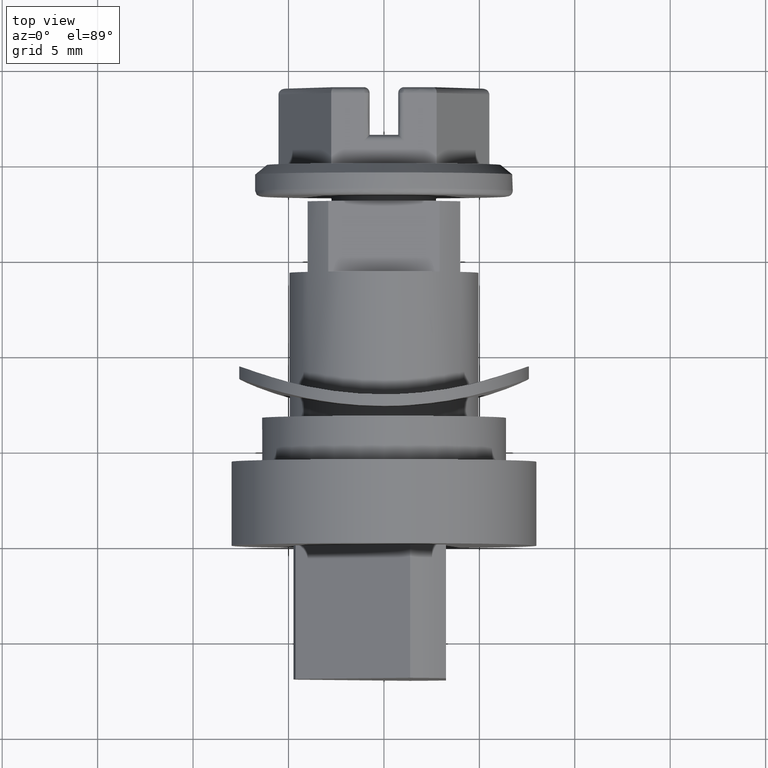
[diagram: clean part render]
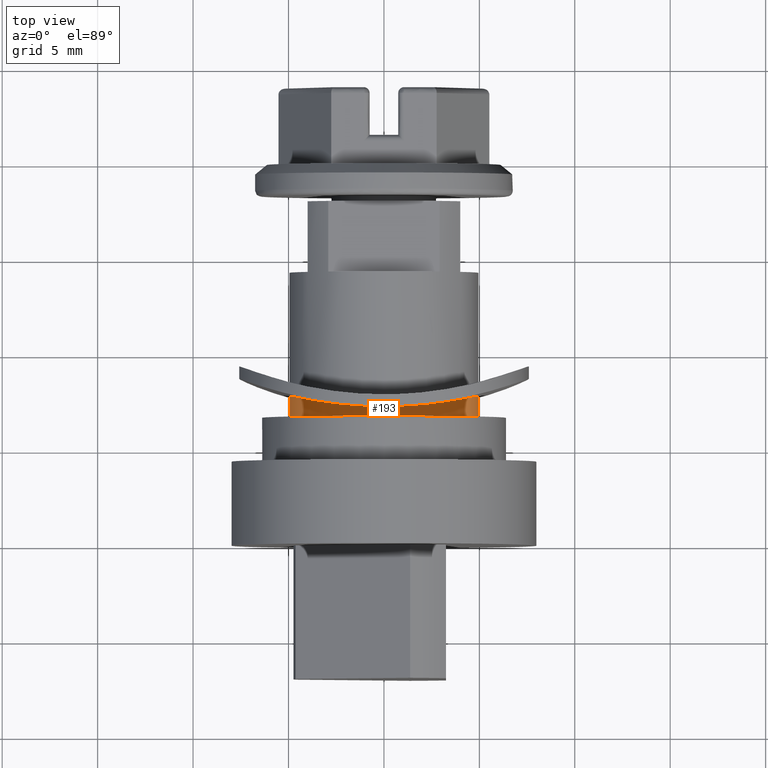
[diagram: same view with one face highlighted and labeled with its STEP entity id]
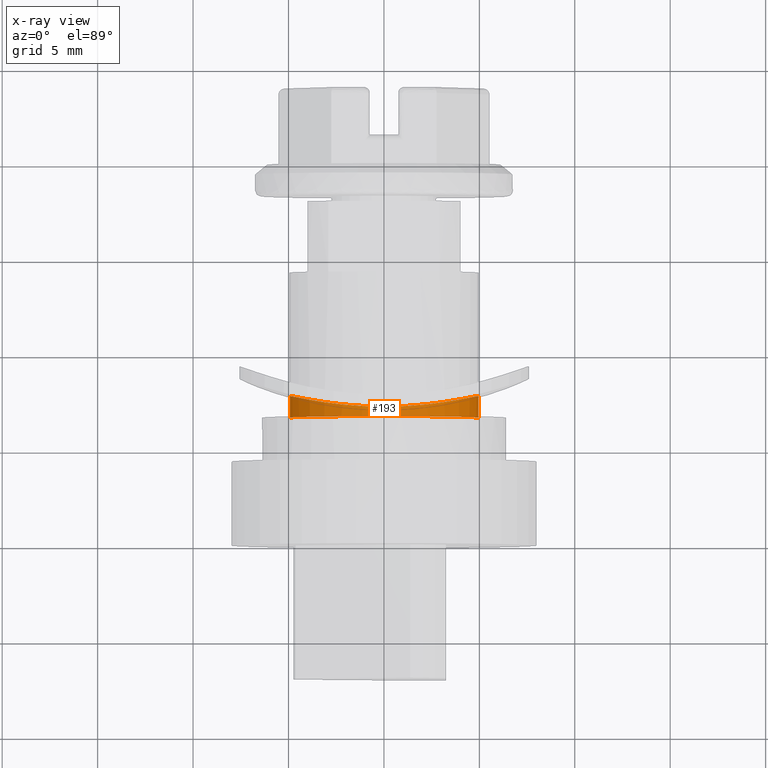
[diagram: x-ray of the same camera — body ghosted, the highlighted face saturated]
A machine part, top view. The second image highlights one B-rep face of the part: STEP entity #193.
The next image is the same camera in x-ray: the body ghosted, the highlighted face saturated — about 0% of this face is hidden behind the body in this view.
In plain terms, the highlighted face is a freeform B-spline surface patch.
Its self-contained STEP definition (entity closure, byte-faithful):
#44=CARTESIAN_POINT('',(4.947387771196677,7.868939549940374,-0.175296875665200));
#45=CARTESIAN_POINT('',(4.948129703315320,7.868939549940374,-0.140496282237373));
#46=CARTESIAN_POINT('',(5.048512182358194,7.868939549940374,4.567980076545630));
#47=CARTESIAN_POINT('',(0.388372539787553,7.868939549940374,4.934741020457006));
#48=CARTESIAN_POINT('',(-4.546368464661252,7.868939549940374,5.323113560244558));
#49=CARTESIAN_POINT('',(-4.937424855956874,7.868939549940378,0.354270989052777));
#50=CARTESIAN_POINT('',(-4.940093386666383,7.868939549940372,0.320364091512918));
#51=CARTESIAN_POINT('',(4.947387771196677,6.670777023206621,-0.175296875665200));
#52=CARTESIAN_POINT('',(4.948129703315320,6.670777023206620,-0.140496282237373));
#53=CARTESIAN_POINT('',(5.048512182358194,6.670777023206621,4.567980076545630));
#54=CARTESIAN_POINT('',(0.388372539787553,6.670777023206620,4.934741020457006));
#55=CARTESIAN_POINT('',(-4.546368464661252,6.670777023206619,5.323113560244558));
#56=CARTESIAN_POINT('',(-4.937424855956874,6.670777023206623,0.354270989052777));
#57=CARTESIAN_POINT('',(-4.940093386666383,6.670777023206618,0.320364091512918));
#65=(BOUNDED_SURFACE()B_SPLINE_SURFACE(2,1,((#44,#51),(#45,#52),(#46,#53),(#47,#54),(#48,#55),(#49,#56),(#50,#57)),.UNSPECIFIED.,.F.,.F.,.U.)B_SPLINE_SURFACE_WITH_KNOTS((3,1,2,1,3),(2,2),(0.0,0.080374041516822,7.953745758144900,16.155174629632480,16.235556740622279),(0.0,1.0),.UNSPECIFIED.)GEOMETRIC_REPRESENTATION_ITEM()RATIONAL_B_SPLINE_SURFACE(((0.982787253851652,0.982787253851652),(0.980146527323389,0.980146527323389),(0.718822509939086,0.718822509939086),(1.0,1.0),(0.707106781186548,0.707106781186548),(1.002870643102773,1.002870643102773),(1.005741286205547,1.005741286205547)))REPRESENTATION_ITEM('')SURFACE());
#66=CARTESIAN_POINT('',(4.948879751987990,7.840132820452007,-0.105507748582724));
#67=VERTEX_POINT('',#66);
#68=CARTESIAN_POINT('',(0.002099551626332,7.200001162218512,4.949999773839753));
#69=VERTEX_POINT('',#68);
#70=CARTESIAN_POINT('',(4.948879751987990,7.840132820452007,-0.105507748582724));
#71=CARTESIAN_POINT('',(4.949601862319679,7.840324160573502,-0.071410620996152));
#72=CARTESIAN_POINT('',(4.949973454942120,7.840422905422813,-0.037288477874072));
#73=CARTESIAN_POINT('',(4.950098117702120,7.840455690884396,0.159015733453871));
#74=CARTESIAN_POINT('',(4.942254124892306,7.838385777116133,0.321739933449679));
#75=CARTESIAN_POINT('',(4.910093685302143,7.829965805465504,0.648362697134754));
#76=CARTESIAN_POINT('',(4.886013491991342,7.823678608873326,0.809703603519524));
#77=CARTESIAN_POINT('',(4.790837928010884,7.799148572079519,1.286649987823281));
#78=CARTESIAN_POINT('',(4.696965241709910,7.775218054186232,1.595873352656662));
#79=CARTESIAN_POINT('',(4.541184167453957,7.737540816707886,1.971480312491870));
#80=CARTESIAN_POINT('',(4.507988822195961,7.729594045347338,2.046252956049082));
#81=CARTESIAN_POINT('',(4.438197375441896,7.713101369639995,2.193517648142008));
#82=CARTESIAN_POINT('',(4.401629043436438,7.704561513700611,2.265984609877945));
#83=CARTESIAN_POINT('',(4.287004778093002,7.678174025103234,2.479971661030763));
#84=CARTESIAN_POINT('',(4.204041901197334,7.659559192280666,2.618086297819789));
#85=CARTESIAN_POINT('',(4.025234030032119,7.620856476404650,2.885452759873463));
#86=CARTESIAN_POINT('',(3.929388900054450,7.600767680173651,3.014704363250560));
#87=CARTESIAN_POINT('',(3.775821113349411,7.569948958945916,3.201901664707152));
#88=CARTESIAN_POINT('',(3.722995445215187,7.559561783500366,3.263185359269615));
#89=CARTESIAN_POINT('',(3.614009628172497,7.538630042647959,3.383490704675788));
#90=CARTESIAN_POINT('',(3.557788133209711,7.528075808192384,3.442556871702676));
#91=CARTESIAN_POINT('',(3.271315525352431,7.475662300544934,3.729081595186396));
#92=CARTESIAN_POINT('',(3.022908787332392,7.434447054410257,3.932959357331786));
#93=CARTESIAN_POINT('',(2.621717572384286,7.377031855620355,4.201786020410382));
#94=CARTESIAN_POINT('',(2.483188789472399,7.358625503457627,4.285183185626472));
#95=CARTESIAN_POINT('',(2.267901018691166,7.332538835441519,4.400653759099920));
#96=CARTESIAN_POINT('',(2.194920688259193,7.324104601097399,4.437501849991760));
#97=CARTESIAN_POINT('',(2.048097483258126,7.307993719176277,4.507149528309946));
#98=CARTESIAN_POINT('',(1.974052492145117,7.300291926250091,4.540060984361574));
#99=CARTESIAN_POINT('',(1.600697426720374,7.263656965753866,4.695197875366080));
#100=CARTESIAN_POINT('',(1.292085198202387,7.240341267882218,4.789439093904703));
#101=CARTESIAN_POINT('',(0.893605354158535,7.220375830194301,4.869350870999478));
#102=CARTESIAN_POINT('',(0.813268087728567,7.216842176885724,4.883421290284169));
#103=CARTESIAN_POINT('',(0.651279984784909,7.210739146959072,4.907651481231377));
#104=CARTESIAN_POINT('',(0.569789382258632,7.208179159830097,4.917774027596916));
#105=CARTESIAN_POINT('',(0.326169802218242,7.202057513303578,4.941938173106622));
#106=CARTESIAN_POINT('',(0.164010637635556,7.200018641400861,4.949931100305132));
#107=CARTESIAN_POINT('',(0.002099551626332,7.200001162218512,4.949999773839753));
#108=B_SPLINE_CURVE_WITH_KNOTS('',3,(#70,#71,#72,#73,#74,#75,#76,#77,#78,#79,#80,#81,#82,#83,#84,#85,#86,#87,#88,#89,#90,#91,#92,#93,#94,#95,#96,#97,#98,#99,#100,#101,#102,#103,#104,#105,#106,#107),.UNSPECIFIED.,.F.,.U.,(4,2,2,2,2,2,2,2,2,2,2,2,2,2,2,2,2,2,4),(0.246709679165166,0.250000000000001,0.265625000000001,0.281250000000001,0.312500000000001,0.320312500000001,0.328125000000001,0.343750000000001,0.359375000000001,0.367187500000001,0.375000000000001,0.406250000000001,0.421875000000001,0.429687500000001,0.437500000000001,0.468750000000001,0.476562500000001,0.484375000000001,0.500000000000001),.UNSPECIFIED.);
#109=EDGE_CURVE('',#67,#69,#108,.T.);
#110=ORIENTED_EDGE('',*,*,#109,.T.);
#111=CARTESIAN_POINT('',(-4.934741098341358,7.836418882127584,0.388372938903500));
#112=VERTEX_POINT('',#111);
#113=CARTESIAN_POINT('',(0.002099551626332,7.200001162218512,4.949999773839753));
#114=CARTESIAN_POINT('',(-0.321722750913437,7.199966203853812,4.950137123673125));
#115=CARTESIAN_POINT('',(-0.644658160705429,7.208018809588152,4.918792553151810));
#116=CARTESIAN_POINT('',(-1.288089745738943,7.240027245598429,4.790712799566194));
#117=CARTESIAN_POINT('',(-1.597715574350277,7.263418499811168,4.696170594935985));
#118=CARTESIAN_POINT('',(-2.045016128535393,7.307228355698178,4.510705485526721));
#119=CARTESIAN_POINT('',(-2.191238548667237,7.323288657777392,4.441552155562917));
#120=CARTESIAN_POINT('',(-2.406191540145268,7.349276859633664,4.326586051961667));
#121=CARTESIAN_POINT('',(-2.477297040289675,7.358281291690729,4.286270727466011));
#122=CARTESIAN_POINT('',(-2.616778188156526,7.376705429063337,4.202569367216728));
#123=CARTESIAN_POINT('',(-2.685211264449800,7.386129525532037,4.159167065015772));
#124=CARTESIAN_POINT('',(-3.020985080075898,7.434127810735898,3.934539405399560));
#125=CARTESIAN_POINT('',(-3.269340270393432,7.475334854589439,3.730695990337068));
#126=CARTESIAN_POINT('',(-3.554825146024256,7.527524921007948,3.445610441928127));
#127=CARTESIAN_POINT('',(-3.610662391892799,7.537996719210907,3.387064866157396));
#128=CARTESIAN_POINT('',(-3.719778424128601,7.558933995789517,3.266854723939450));
#129=CARTESIAN_POINT('',(-3.773086804766124,7.569406807441609,3.205134434454368));
#130=CARTESIAN_POINT('',(-3.927445790248526,7.600363456929326,3.017274653681198));
#131=CARTESIAN_POINT('',(-4.023545252889671,7.620498390536008,2.887809650395563));
#132=CARTESIAN_POINT('',(-4.291965480707600,7.678573538124128,2.486959972765037));
#133=CARTESIAN_POINT('',(-4.444612335199641,7.714200141035096,2.203247546031218));
#134=CARTESIAN_POINT('',(-4.601276259921645,7.752069796951671,1.826857240974886));
#135=CARTESIAN_POINT('',(-4.630864588589023,7.759304754381345,1.750490963458138));
#136=CARTESIAN_POINT('',(-4.685906638148247,7.772882822698932,1.597311624151760));
#137=CARTESIAN_POINT('',(-4.711454748460087,7.779248637109814,1.520281029723186));
#138=CARTESIAN_POINT('',(-4.782268702244913,7.797022885629674,1.287882331042392));
#139=CARTESIAN_POINT('',(-4.861167614613474,7.817193053037115,0.974538206123376));
#140=CARTESIAN_POINT('',(-4.909269666996092,7.829749663766742,0.654257274643529));
#141=CARTESIAN_POINT('',(-4.928910614927249,7.834891058429175,0.457765754134931));
#142=CARTESIAN_POINT('',(-4.932007267727460,7.835702625774626,0.423110518168883));
#143=CARTESIAN_POINT('',(-4.934741098341358,7.836418882127584,0.388372938903500));
#144=B_SPLINE_CURVE_WITH_KNOTS('',3,(#113,#114,#115,#116,#117,#118,#119,#120,#121,#122,#123,#124,#125,#126,#127,#128,#129,#130,#131,#132,#133,#134,#135,#136,#137,#138,#139,#140,#141,#142,#143),.UNSPECIFIED.,.F.,.U.,(4,2,2,2,2,2,2,2,2,2,2,2,2,1,2,4),(0.500000000000001,0.531250000000001,0.562500000000001,0.578125000000001,0.585937500000001,0.593750000000001,0.625000000000000,0.632812500000000,0.640625000000000,0.656250000000000,0.687500000000000,0.695312500000000,0.703125000000000,0.718750000000000,0.734375000000000,0.737711390997194),.UNSPECIFIED.);
#145=EDGE_CURVE('',#69,#112,#144,.T.);
#146=ORIENTED_EDGE('',*,*,#145,.T.);
#147=CARTESIAN_POINT('',(-4.934741544845656,6.700000499468420,0.388365689280583));
#148=VERTEX_POINT('',#147);
#149=CARTESIAN_POINT('',(-4.934741098341358,7.836418882127584,0.388372938903500));
#150=CARTESIAN_POINT('',(-4.934741544845656,6.700000499468420,0.388365689280583));
#151=QUASI_UNIFORM_CURVE('',1,(#149,#150),.UNSPECIFIED.,.F.,.U.);
#152=EDGE_CURVE('',#112,#148,#151,.T.);
#153=ORIENTED_EDGE('',*,*,#152,.T.);
#154=CARTESIAN_POINT('',(0.0,6.700000499468420,4.950000219104100));
#155=VERTEX_POINT('',#154);
#156=CARTESIAN_POINT('',(0.0,6.700000499468420,4.950000219104100));
#157=CARTESIAN_POINT('',(-4.575739508107957,6.700000499468420,4.950000219104099));
#158=CARTESIAN_POINT('',(-4.934741544845656,6.700000499468420,0.388365689280582));
#166=(BOUNDED_CURVE()B_SPLINE_CURVE(2,(#156,#157,#158),.UNSPECIFIED.,.F.,.U.)B_SPLINE_CURVE_WITH_KNOTS((3,3),(0.500000000000000,0.736331539163834),.UNSPECIFIED.)CURVE()GEOMETRIC_REPRESENTATION_ITEM()RATIONAL_B_SPLINE_CURVE((1.0,0.723120379148669,0.969723853968488))REPRESENTATION_ITEM(''));
#167=EDGE_CURVE('',#155,#148,#166,.T.);
#168=ORIENTED_EDGE('',*,*,#167,.F.);
#169=CARTESIAN_POINT('',(4.948875644084547,6.700000499468420,-0.105507661609170));
#170=VERTEX_POINT('',#169);
#171=CARTESIAN_POINT('',(4.948875644084547,6.700000499468420,-0.105507661609170));
#172=CARTESIAN_POINT('',(4.950000203095901,6.700000499468420,-0.052759815896507));
#173=CARTESIAN_POINT('',(4.950000203095900,6.700000499468420,0.000000016008201));
#174=CARTESIAN_POINT('',(4.950000203095900,6.700000499468420,4.950000219104100));
#175=CARTESIAN_POINT('',(0.0,6.700000499468420,4.950000219104100));
#183=(BOUNDED_CURVE()B_SPLINE_CURVE(2,(#171,#172,#173,#174,#175),.UNSPECIFIED.,.F.,.U.)B_SPLINE_CURVE_WITH_KNOTS((3,2,3),(0.246248196889300,0.250000000000000,0.500000000000000),.UNSPECIFIED.)CURVE()GEOMETRIC_REPRESENTATION_ITEM()RATIONAL_B_SPLINE_CURVE((0.991340907211896,0.995604489242211,1.0,0.707106781186547,1.0))REPRESENTATION_ITEM(''));
#184=EDGE_CURVE('',#170,#155,#183,.T.);
#185=ORIENTED_EDGE('',*,*,#184,.F.);
#186=CARTESIAN_POINT('',(4.948879751987990,7.840132820452007,-0.105507748582724));
#187=CARTESIAN_POINT('',(4.948875644084547,6.700000499468420,-0.105507661609170));
#188=QUASI_UNIFORM_CURVE('',1,(#186,#187),.UNSPECIFIED.,.F.,.U.);
#189=EDGE_CURVE('',#67,#170,#188,.T.);
#190=ORIENTED_EDGE('',*,*,#189,.F.);
#191=EDGE_LOOP('',(#110,#146,#153,#168,#185,#190));
#192=FACE_OUTER_BOUND('',#191,.T.);
#193=ADVANCED_FACE('',(#192),#65,.T.);